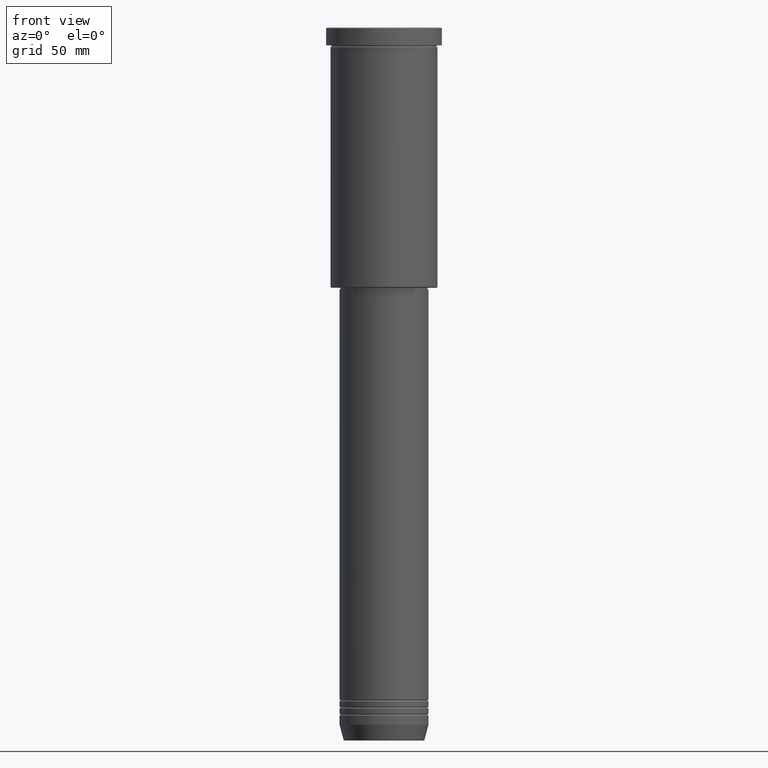
[diagram: clean part render]
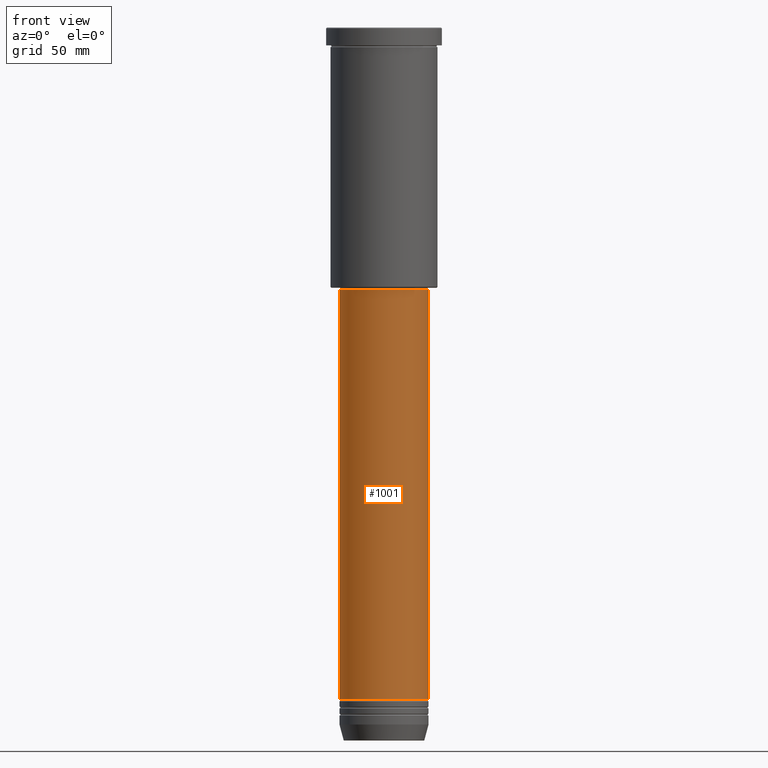
[diagram: same view with one face highlighted and labeled with its STEP entity id]
A machine part, front view. The second image highlights one B-rep face of the part: STEP entity #1001.
In plain terms, the highlighted cylindrical surface (partial cylindrical patch) has radius 25 mm, axis along (-0, -0, 1).
Its self-contained STEP definition (entity closure, byte-faithful):
#69 = AXIS2_PLACEMENT_3D ( 'NONE', #632, #991, #80 ) ;
#80 = DIRECTION ( 'NONE',  ( 1.000000000000000000, 0.000000000000000000, 0.000000000000000000 ) ) ;
#139 = EDGE_LOOP ( 'NONE', ( #1055, #1162, #530, #440 ) ) ;
#140 = EDGE_CURVE ( 'NONE', #692, #273, #315, .T. ) ;
#204 = VERTEX_POINT ( 'NONE', #590 ) ;
#209 = CARTESIAN_POINT ( 'NONE',  ( -25.00000000000000000, 3.061616997868383437E-15, -377.0000000000000000 ) ) ;
#213 = CARTESIAN_POINT ( 'NONE',  ( -25.00000000000000355, 3.061616997868383437E-15, 0.000000000000000000 ) ) ;
#273 = VERTEX_POINT ( 'NONE', #803 ) ;
#301 = DIRECTION ( 'NONE',  ( -0.000000000000000000, -0.000000000000000000, 1.000000000000000000 ) ) ;
#305 = LINE ( 'NONE', #213, #396 ) ;
#315 = CIRCLE ( 'NONE', #830, 25.00000000000000000 ) ;
#396 = VECTOR ( 'NONE', #1114, 1000.000000000000000 ) ;
#440 = ORIENTED_EDGE ( 'NONE', *, *, #1025, .F. ) ;
#456 = LINE ( 'NONE', #818, #817 ) ;
#486 = CARTESIAN_POINT ( 'NONE',  ( 0.000000000000000000, 0.000000000000000000, -377.0000000000000000 ) ) ;
#512 = AXIS2_PLACEMENT_3D ( 'NONE', #790, #984, #893 ) ;
#530 = ORIENTED_EDGE ( 'NONE', *, *, #584, .T. ) ;
#535 = FACE_OUTER_BOUND ( 'NONE', #139, .T. ) ;
#584 = EDGE_CURVE ( 'NONE', #273, #1125, #456, .T. ) ;
#590 = CARTESIAN_POINT ( 'NONE',  ( -25.00000000000001066, 3.061616997868384226E-15, -146.9999999999999147 ) ) ;
#628 = CYLINDRICAL_SURFACE ( 'NONE', #512, 25.00000000000000355 ) ;
#632 = CARTESIAN_POINT ( 'NONE',  ( 0.000000000000000000, 0.000000000000000000, -146.9999999999999147 ) ) ;
#651 = DIRECTION ( 'NONE',  ( -0.000000000000000000, -0.000000000000000000, 1.000000000000000000 ) ) ;
#672 = DIRECTION ( 'NONE',  ( 1.000000000000000000, 0.000000000000000000, 0.000000000000000000 ) ) ;
#679 = EDGE_CURVE ( 'NONE', #692, #204, #305, .T. ) ;
#692 = VERTEX_POINT ( 'NONE', #209 ) ;
#790 = CARTESIAN_POINT ( 'NONE',  ( 0.000000000000000000, 0.000000000000000000, 0.000000000000000000 ) ) ;
#803 = CARTESIAN_POINT ( 'NONE',  ( 25.00000000000000000, 0.000000000000000000, -377.0000000000000000 ) ) ;
#817 = VECTOR ( 'NONE', #651, 1000.000000000000000 ) ;
#818 = CARTESIAN_POINT ( 'NONE',  ( 25.00000000000000355, 0.000000000000000000, 0.000000000000000000 ) ) ;
#830 = AXIS2_PLACEMENT_3D ( 'NONE', #486, #301, #672 ) ;
#837 = CARTESIAN_POINT ( 'NONE',  ( 25.00000000000000711, 0.000000000000000000, -146.9999999999999147 ) ) ;
#893 = DIRECTION ( 'NONE',  ( 1.000000000000000000, 0.000000000000000000, 0.000000000000000000 ) ) ;
#984 = DIRECTION ( 'NONE',  ( -0.000000000000000000, -0.000000000000000000, 1.000000000000000000 ) ) ;
#991 = DIRECTION ( 'NONE',  ( -0.000000000000000000, -0.000000000000000000, 1.000000000000000000 ) ) ;
#1001 = ADVANCED_FACE ( 'NONE', ( #535 ), #628, .T. ) ;
#1008 = CIRCLE ( 'NONE', #69, 25.00000000000000711 ) ;
#1025 = EDGE_CURVE ( 'NONE', #204, #1125, #1008, .T. ) ;
#1055 = ORIENTED_EDGE ( 'NONE', *, *, #679, .F. ) ;
#1114 = DIRECTION ( 'NONE',  ( -0.000000000000000000, -0.000000000000000000, 1.000000000000000000 ) ) ;
#1125 = VERTEX_POINT ( 'NONE', #837 ) ;
#1162 = ORIENTED_EDGE ( 'NONE', *, *, #140, .T. ) ;